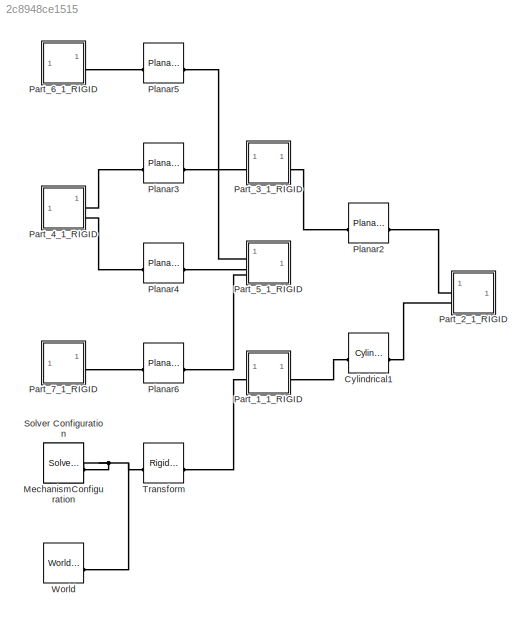
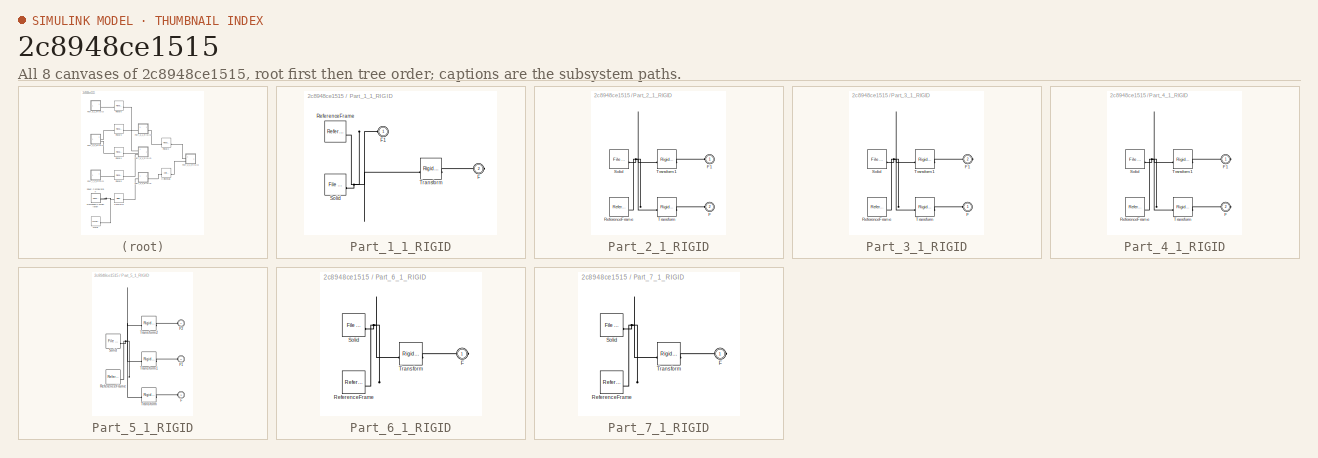
[diagram: thumbnail index - all 8 canvases of the model, root first then tree order]
MODEL slx_2c8948ce1515
KIND model
CONFIG AbsTol = 0.1
CONFIG EnableMultiTasking = off
CONFIG FixedStep = auto
CONFIG MaxStep = 0.01
CONFIG MinStep = 0
CONFIG RelTol = 1e-3
CONFIG SampleTimeConstraint = Unconstrained
CONFIG SolverName = FixedStepAuto
CONFIG StartTime = 0.0
CONFIG StopTime = 10.0
WORKSPACE source: external: MATLAB File  (data not in archive)
BLOCK [Reference] Cylindrical1  REF=sm_lib/Joints/Cylindrical
Joint
  SourceBlock = sm_lib/Joints/Cylindrical\nJoint
  SourceType = Cylindrical\nJoint
BLOCK [Reference] MechanismConfiguration  REF=sm_lib/Utilities/Mechanism
Configuration
  SourceBlock = sm_lib/Utilities/Mechanism\nConfiguration
  SourceType = Mechanism\nConfiguration
BLOCK [SubSystem] Part_1_1_RIGID
BLOCK [PMIOPort] Part_1_1_RIGID/F
  Port = 2
  Side = Right
BLOCK [PMIOPort] Part_1_1_RIGID/F1
  Side = Left
BLOCK [Reference] Part_1_1_RIGID/ReferenceFrame  REF=sm_lib/Frames and
Transforms/Reference
Frame
  SourceBlock = sm_lib/Frames and\nTransforms/Reference\nFrame
  SourceType = Reference\nFrame
BLOCK [Reference] Part_1_1_RIGID/Solid  REF=sm_lib/Body Elements/File Solid
  SourceBlock = sm_lib/Body Elements/File Solid
  SourceType = File Solid
BLOCK [Reference] Part_1_1_RIGID/Transform  REF=sm_lib/Frames and
Transforms/Rigid
Transform
  SourceBlock = sm_lib/Frames and\nTransforms/Rigid\nTransform
  SourceType = Rigid\nTransform
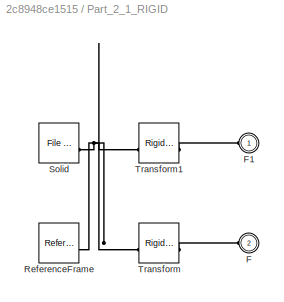
BLOCK [SubSystem] Part_2_1_RIGID
BLOCK [PMIOPort] Part_2_1_RIGID/F
  Port = 2
  Side = Left
BLOCK [PMIOPort] Part_2_1_RIGID/F1
  Side = Left
BLOCK [Reference] Part_2_1_RIGID/ReferenceFrame  REF=sm_lib/Frames and
Transforms/Reference
Frame
  SourceBlock = sm_lib/Frames and\nTransforms/Reference\nFrame
  SourceType = Reference\nFrame
BLOCK [Reference] Part_2_1_RIGID/Solid  REF=sm_lib/Body Elements/File Solid
  SourceBlock = sm_lib/Body Elements/File Solid
  SourceType = File Solid
BLOCK [Reference] Part_2_1_RIGID/Transform  REF=sm_lib/Frames and
Transforms/Rigid
Transform
  SourceBlock = sm_lib/Frames and\nTransforms/Rigid\nTransform
  SourceType = Rigid\nTransform
BLOCK [Reference] Part_2_1_RIGID/Transform1  REF=sm_lib/Frames and
Transforms/Rigid
Transform
  SourceBlock = sm_lib/Frames and\nTransforms/Rigid\nTransform
  SourceType = Rigid\nTransform
BLOCK [SubSystem] Part_3_1_RIGID
BLOCK [PMIOPort] Part_3_1_RIGID/F
  Side = Left
BLOCK [PMIOPort] Part_3_1_RIGID/F1
  Port = 2
  Side = Right
BLOCK [Reference] Part_3_1_RIGID/ReferenceFrame  REF=sm_lib/Frames and
Transforms/Reference
Frame
  SourceBlock = sm_lib/Frames and\nTransforms/Reference\nFrame
  SourceType = Reference\nFrame
BLOCK [Reference] Part_3_1_RIGID/Solid  REF=sm_lib/Body Elements/File Solid
  SourceBlock = sm_lib/Body Elements/File Solid
  SourceType = File Solid
BLOCK [Reference] Part_3_1_RIGID/Transform  REF=sm_lib/Frames and
Transforms/Rigid
Transform
  SourceBlock = sm_lib/Frames and\nTransforms/Rigid\nTransform
  SourceType = Rigid\nTransform
BLOCK [Reference] Part_3_1_RIGID/Transform1  REF=sm_lib/Frames and
Transforms/Rigid
Transform
  SourceBlock = sm_lib/Frames and\nTransforms/Rigid\nTransform
  SourceType = Rigid\nTransform
BLOCK [SubSystem] Part_4_1_RIGID
BLOCK [PMIOPort] Part_4_1_RIGID/F
  Port = 2
  Side = Right
BLOCK [PMIOPort] Part_4_1_RIGID/F1
  Side = Right
BLOCK [Reference] Part_4_1_RIGID/ReferenceFrame  REF=sm_lib/Frames and
Transforms/Reference
Frame
  SourceBlock = sm_lib/Frames and\nTransforms/Reference\nFrame
  SourceType = Reference\nFrame
BLOCK [Reference] Part_4_1_RIGID/Solid  REF=sm_lib/Body Elements/File Solid
  SourceBlock = sm_lib/Body Elements/File Solid
  SourceType = File Solid
BLOCK [Reference] Part_4_1_RIGID/Transform  REF=sm_lib/Frames and
Transforms/Rigid
Transform
  SourceBlock = sm_lib/Frames and\nTransforms/Rigid\nTransform
  SourceType = Rigid\nTransform
BLOCK [Reference] Part_4_1_RIGID/Transform1  REF=sm_lib/Frames and
Transforms/Rigid
Transform
  SourceBlock = sm_lib/Frames and\nTransforms/Rigid\nTransform
  SourceType = Rigid\nTransform
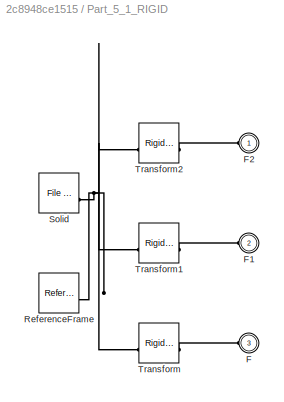
BLOCK [SubSystem] Part_5_1_RIGID
BLOCK [PMIOPort] Part_5_1_RIGID/F
  Port = 3
  Side = Left
BLOCK [PMIOPort] Part_5_1_RIGID/F1
  Port = 2
  Side = Left
BLOCK [PMIOPort] Part_5_1_RIGID/F2
  Side = Left
BLOCK [Reference] Part_5_1_RIGID/ReferenceFrame  REF=sm_lib/Frames and
Transforms/Reference
Frame
  SourceBlock = sm_lib/Frames and\nTransforms/Reference\nFrame
  SourceType = Reference\nFrame
BLOCK [Reference] Part_5_1_RIGID/Solid  REF=sm_lib/Body Elements/File Solid
  SourceBlock = sm_lib/Body Elements/File Solid
  SourceType = File Solid
BLOCK [Reference] Part_5_1_RIGID/Transform  REF=sm_lib/Frames and
Transforms/Rigid
Transform
  SourceBlock = sm_lib/Frames and\nTransforms/Rigid\nTransform
  SourceType = Rigid\nTransform
BLOCK [Reference] Part_5_1_RIGID/Transform1  REF=sm_lib/Frames and
Transforms/Rigid
Transform
  SourceBlock = sm_lib/Frames and\nTransforms/Rigid\nTransform
  SourceType = Rigid\nTransform
BLOCK [Reference] Part_5_1_RIGID/Transform2  REF=sm_lib/Frames and
Transforms/Rigid
Transform
  SourceBlock = sm_lib/Frames and\nTransforms/Rigid\nTransform
  SourceType = Rigid\nTransform
BLOCK [SubSystem] Part_6_1_RIGID
BLOCK [PMIOPort] Part_6_1_RIGID/F
  Side = Right
BLOCK [Reference] Part_6_1_RIGID/ReferenceFrame  REF=sm_lib/Frames and
Transforms/Reference
Frame
  SourceBlock = sm_lib/Frames and\nTransforms/Reference\nFrame
  SourceType = Reference\nFrame
BLOCK [Reference] Part_6_1_RIGID/Solid  REF=sm_lib/Body Elements/File Solid
  SourceBlock = sm_lib/Body Elements/File Solid
  SourceType = File Solid
BLOCK [Reference] Part_6_1_RIGID/Transform  REF=sm_lib/Frames and
Transforms/Rigid
Transform
  SourceBlock = sm_lib/Frames and\nTransforms/Rigid\nTransform
  SourceType = Rigid\nTransform
BLOCK [SubSystem] Part_7_1_RIGID
BLOCK [PMIOPort] Part_7_1_RIGID/F
  Side = Right
BLOCK [Reference] Part_7_1_RIGID/ReferenceFrame  REF=sm_lib/Frames and
Transforms/Reference
Frame
  SourceBlock = sm_lib/Frames and\nTransforms/Reference\nFrame
  SourceType = Reference\nFrame
BLOCK [Reference] Part_7_1_RIGID/Solid  REF=sm_lib/Body Elements/File Solid
  SourceBlock = sm_lib/Body Elements/File Solid
  SourceType = File Solid
BLOCK [Reference] Part_7_1_RIGID/Transform  REF=sm_lib/Frames and
Transforms/Rigid
Transform
  SourceBlock = sm_lib/Frames and\nTransforms/Rigid\nTransform
  SourceType = Rigid\nTransform
BLOCK [Reference] Planar2  REF=sm_lib/Joints/Planar Joint
  SourceBlock = sm_lib/Joints/Planar Joint
  SourceType = Planar Joint
BLOCK [Reference] Planar3  REF=sm_lib/Joints/Planar Joint
  SourceBlock = sm_lib/Joints/Planar Joint
  SourceType = Planar Joint
BLOCK [Reference] Planar4  REF=sm_lib/Joints/Planar Joint
  SourceBlock = sm_lib/Joints/Planar Joint
  SourceType = Planar Joint
BLOCK [Reference] Planar5  REF=sm_lib/Joints/Planar Joint
  SourceBlock = sm_lib/Joints/Planar Joint
  SourceType = Planar Joint
BLOCK [Reference] Planar6  REF=sm_lib/Joints/Planar Joint
  SourceBlock = sm_lib/Joints/Planar Joint
  SourceType = Planar Joint
BLOCK [Reference] Solver Configuration  REF=nesl_utility/Solver
Configuration
  SourceBlock = nesl_utility/Solver\nConfiguration
  SourceType = Solver\nConfiguration
BLOCK [Reference] Transform  REF=sm_lib/Frames and
Transforms/Rigid
Transform
  SourceBlock = sm_lib/Frames and\nTransforms/Rigid\nTransform
  SourceType = Rigid\nTransform
BLOCK [Reference] World  REF=sm_lib/Frames and
Transforms/World Frame
  SourceBlock = sm_lib/Frames and\nTransforms/World Frame
  SourceType = World Frame
PLINE Cylindrical1:LConn1 -- Part_1_1_RIGID:RConn1
PLINE Cylindrical1:RConn1 -- Part_2_1_RIGID:LConn2
PNET net1: MechanismConfiguration:RConn1 -- Solver Configuration:RConn1 -- Transform:LConn1 -- World:RConn1
PNET net2: Part_1_1_RIGID/F1:RConn1 -- Part_1_1_RIGID/ReferenceFrame:RConn1 -- Part_1_1_RIGID/Solid:RConn1 -- Part_1_1_RIGID/Transform:LConn1
PLINE Part_1_1_RIGID/F:RConn1 -- Part_1_1_RIGID/Transform:RConn1
PLINE Part_1_1_RIGID:LConn1 -- Transform:RConn1
PLINE Part_2_1_RIGID/F1:RConn1 -- Part_2_1_RIGID/Transform1:RConn1
PLINE Part_2_1_RIGID/F:RConn1 -- Part_2_1_RIGID/Transform:RConn1
PNET net3: Part_2_1_RIGID/ReferenceFrame:RConn1 -- Part_2_1_RIGID/Solid:RConn1 -- Part_2_1_RIGID/Transform1:LConn1 -- Part_2_1_RIGID/Transform:LConn1
PLINE Part_2_1_RIGID:LConn1 -- Planar2:RConn1
PLINE Part_3_1_RIGID/F1:RConn1 -- Part_3_1_RIGID/Transform1:RConn1
PLINE Part_3_1_RIGID/F:RConn1 -- Part_3_1_RIGID/Transform:RConn1
PNET net4: Part_3_1_RIGID/ReferenceFrame:RConn1 -- Part_3_1_RIGID/Solid:RConn1 -- Part_3_1_RIGID/Transform1:LConn1 -- Part_3_1_RIGID/Transform:LConn1
PLINE Part_3_1_RIGID:LConn1 -- Planar3:RConn1
PLINE Part_3_1_RIGID:RConn1 -- Planar2:LConn1
PLINE Part_4_1_RIGID/F1:RConn1 -- Part_4_1_RIGID/Transform1:RConn1
PLINE Part_4_1_RIGID/F:RConn1 -- Part_4_1_RIGID/Transform:RConn1
PNET net5: Part_4_1_RIGID/ReferenceFrame:RConn1 -- Part_4_1_RIGID/Solid:RConn1 -- Part_4_1_RIGID/Transform1:LConn1 -- Part_4_1_RIGID/Transform:LConn1
PLINE Part_4_1_RIGID:RConn1 -- Planar3:LConn1
PLINE Part_4_1_RIGID:RConn2 -- Planar4:LConn1
PLINE Part_5_1_RIGID/F1:RConn1 -- Part_5_1_RIGID/Transform1:RConn1
PLINE Part_5_1_RIGID/F2:RConn1 -- Part_5_1_RIGID/Transform2:RConn1
PLINE Part_5_1_RIGID/F:RConn1 -- Part_5_1_RIGID/Transform:RConn1
PNET net6: Part_5_1_RIGID/ReferenceFrame:RConn1 -- Part_5_1_RIGID/Solid:RConn1 -- Part_5_1_RIGID/Transform1:LConn1 -- Part_5_1_RIGID/Transform2:LConn1 -- Part_5_1_RIGID/Transform:LConn1
PLINE Part_5_1_RIGID:LConn1 -- Planar5:RConn1
PLINE Part_5_1_RIGID:LConn2 -- Planar4:RConn1
PLINE Part_5_1_RIGID:LConn3 -- Planar6:RConn1
PLINE Part_6_1_RIGID/F:RConn1 -- Part_6_1_RIGID/Transform:RConn1
PNET net7: Part_6_1_RIGID/ReferenceFrame:RConn1 -- Part_6_1_RIGID/Solid:RConn1 -- Part_6_1_RIGID/Transform:LConn1
PLINE Part_6_1_RIGID:RConn1 -- Planar5:LConn1
PLINE Part_7_1_RIGID/F:RConn1 -- Part_7_1_RIGID/Transform:RConn1
PNET net8: Part_7_1_RIGID/ReferenceFrame:RConn1 -- Part_7_1_RIGID/Solid:RConn1 -- Part_7_1_RIGID/Transform:LConn1
PLINE Part_7_1_RIGID:RConn1 -- Planar6:LConn1
note: PNET lines group multi-terminal physical nets as a canonical sorted terminal list (undirected conserving connections); 2-terminal nets keep the pairwise PLINE form
